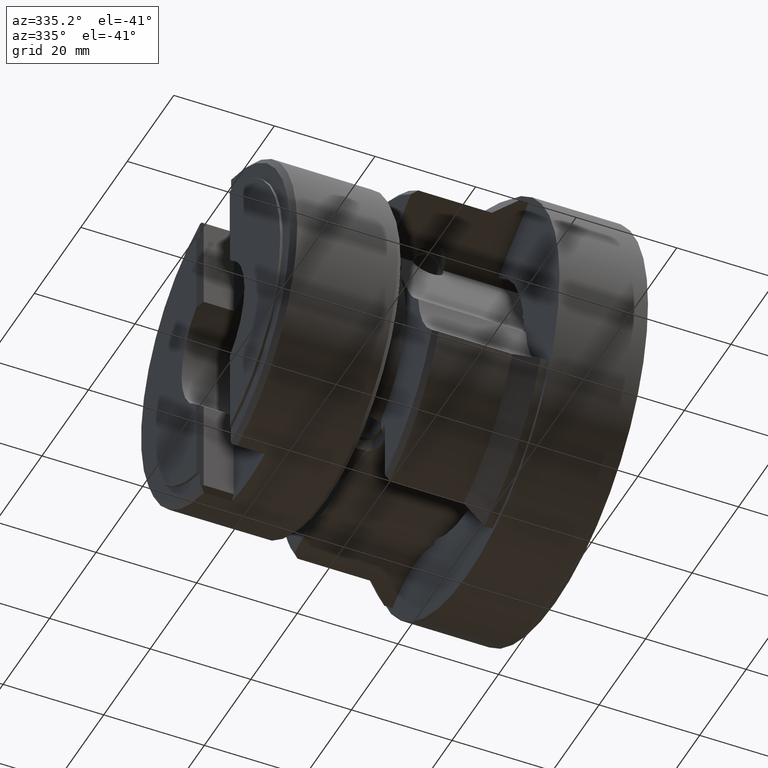
[diagram: clean part render]
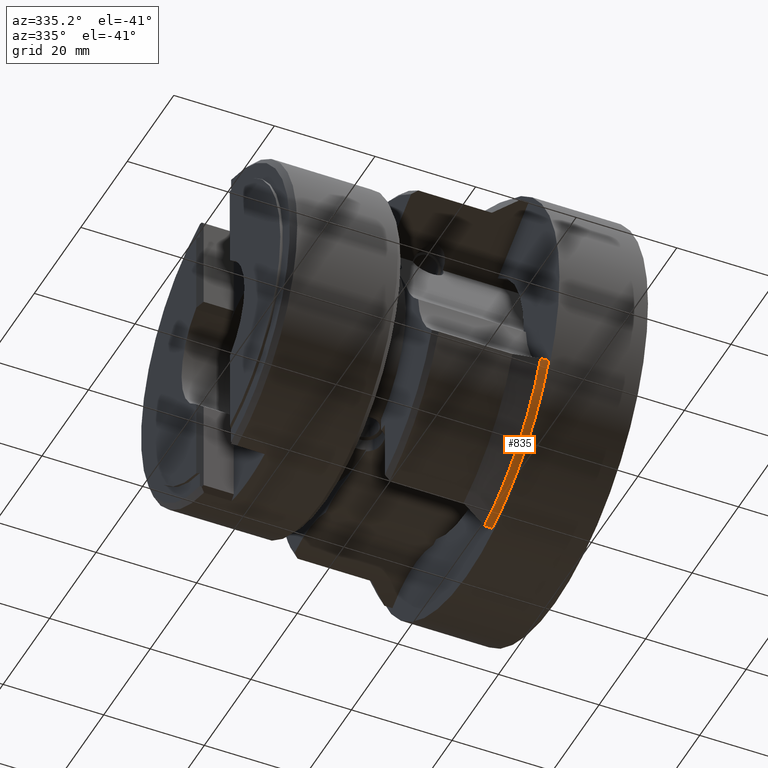
[diagram: same view with one face highlighted and labeled with its STEP entity id]
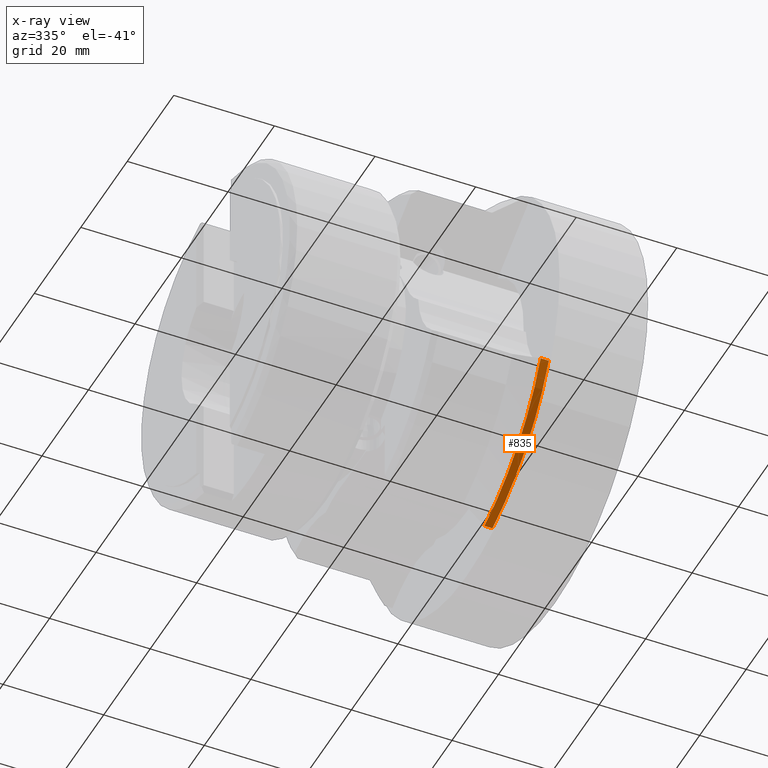
[diagram: x-ray of the same camera — body ghosted, the highlighted face saturated]
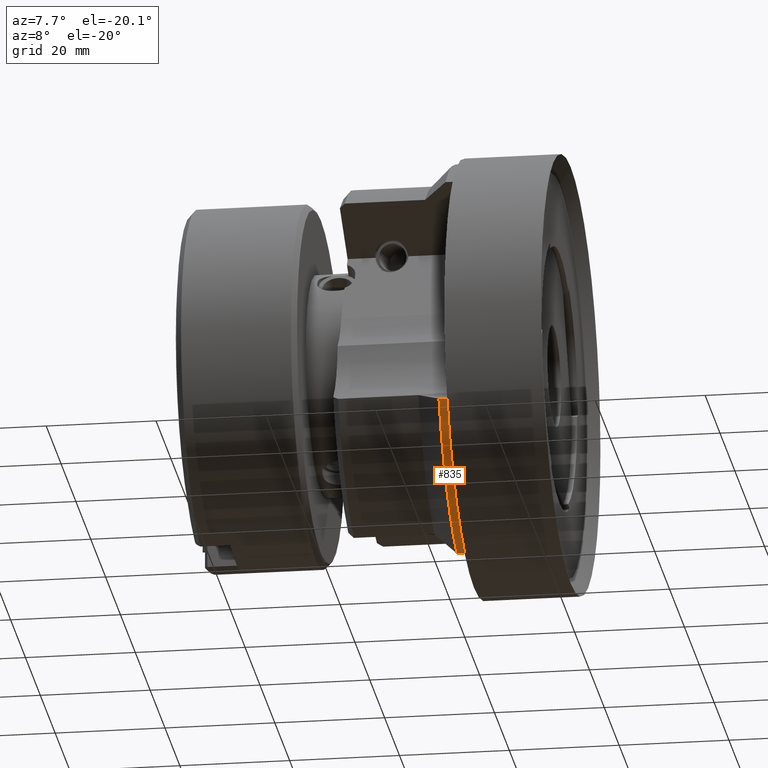
[diagram: same view with one face highlighted and labeled with its STEP entity id]
A machine part, auxiliary view. The second image highlights one B-rep face of the part: STEP entity #835.
The next image is the same camera in x-ray: the body ghosted, the highlighted face saturated — about 0% of this face is hidden behind the body in this view.
A second angle (auxiliary view) of the same face is appended — the face is thin or edge-on in the first view.
In plain terms, the highlighted cylindrical surface (partial cylindrical patch) has radius 39 mm, axis along (1, -0, -0).
Its self-contained STEP definition (entity closure, byte-faithful):
#53 = DIRECTION ( 'NONE',  ( -1.000000000000000000, 0.0000000000000000000, 0.0000000000000000000 ) ) ;
#59 = CARTESIAN_POINT ( 'NONE',  ( 13.51075761658968100, -11.17000000000000200, -37.36617588140375500 ) ) ;
#160 = CARTESIAN_POINT ( 'NONE',  ( -9.100000000000010300, -35.39123470481984400, -16.38476444958410700 ) ) ;
#164 = DIRECTION ( 'NONE',  ( 1.000000000000000000, -0.0000000000000000000, -0.0000000000000000000 ) ) ;
#448 = CARTESIAN_POINT ( 'NONE',  ( -17.19999999999999900, -11.17000000000000200, -37.36617588140375500 ) ) ;
#460 = ORIENTED_EDGE ( 'NONE', *, *, #3405, .F. ) ;
#604 = AXIS2_PLACEMENT_3D ( 'NONE', #4611, #4617, #4613 ) ;
#750 = VERTEX_POINT ( 'NONE', #4738 ) ;
#757 = VERTEX_POINT ( 'NONE', #4731 ) ;
#835 = ADVANCED_FACE ( 'NONE', ( #2334 ), #2340, .T. ) ;
#1173 = EDGE_LOOP ( 'NONE', ( #1342, #1341, #460, #3860 ) ) ;
#1341 = ORIENTED_EDGE ( 'NONE', *, *, #3177, .F. ) ;
#1342 = ORIENTED_EDGE ( 'NONE', *, *, #3254, .F. ) ;
#1637 = DIRECTION ( 'NONE',  ( 0.0000000000000000000, 0.0000000000000000000, 1.000000000000000000 ) ) ;
#1638 = DIRECTION ( 'NONE',  ( -1.000000000000000000, -0.0000000000000000000, -0.0000000000000000000 ) ) ;
#1639 = CARTESIAN_POINT ( 'NONE',  ( -17.19999999999999900, 0.0000000000000000000, 0.0000000000000000000 ) ) ;
#2334 = FACE_OUTER_BOUND ( 'NONE', #1173, .T. ) ;
#2340 = CYLINDRICAL_SURFACE ( 'NONE', #604, 39.00000000000000000 ) ;
#2464 = AXIS2_PLACEMENT_3D ( 'NONE', #1639, #1638, #1637 ) ;
#2485 = AXIS2_PLACEMENT_3D ( 'NONE', #5181, #5188, #5193 ) ;
#2681 = CIRCLE ( 'NONE', #2485, 39.00000000000000000 ) ;
#3068 = VERTEX_POINT ( 'NONE', #4881 ) ;
#3084 = VERTEX_POINT ( 'NONE', #448 ) ;
#3177 = EDGE_CURVE ( 'NONE', #757, #750, #4344, .T. ) ;
#3215 = EDGE_CURVE ( 'NONE', #3068, #3084, #4395, .T. ) ;
#3254 = EDGE_CURVE ( 'NONE', #750, #3068, #2681, .T. ) ;
#3405 = EDGE_CURVE ( 'NONE', #3084, #757, #3591, .T. ) ;
#3591 = CIRCLE ( 'NONE', #2464, 39.00000000000000000 ) ;
#3860 = ORIENTED_EDGE ( 'NONE', *, *, #3215, .F. ) ;
#4344 = LINE ( 'NONE', #160, #4347 ) ;
#4347 = VECTOR ( 'NONE', #164, 1000.000000000000000 ) ;
#4395 = LINE ( 'NONE', #59, #4399 ) ;
#4399 = VECTOR ( 'NONE', #53, 1000.000000000000000 ) ;
#4611 = CARTESIAN_POINT ( 'NONE',  ( 13.51075761658968100, 0.0000000000000000000, 0.0000000000000000000 ) ) ;
#4613 = DIRECTION ( 'NONE',  ( 0.0000000000000000000, 0.0000000000000000000, -1.000000000000000000 ) ) ;
#4617 = DIRECTION ( 'NONE',  ( 1.000000000000000000, -0.0000000000000000000, -0.0000000000000000000 ) ) ;
#4731 = CARTESIAN_POINT ( 'NONE',  ( -17.19999999999999900, -35.39123470481984400, -16.38476444958410700 ) ) ;
#4738 = CARTESIAN_POINT ( 'NONE',  ( -15.60000000000000000, -35.39123470481985100, -16.38476444958411100 ) ) ;
#4881 = CARTESIAN_POINT ( 'NONE',  ( -15.60000000000000000, -11.17000000000000200, -37.36617588140375500 ) ) ;
#5181 = CARTESIAN_POINT ( 'NONE',  ( -15.60000000000000000, 0.0000000000000000000, 0.0000000000000000000 ) ) ;
#5188 = DIRECTION ( 'NONE',  ( 1.000000000000000000, -0.0000000000000000000, -0.0000000000000000000 ) ) ;
#5193 = DIRECTION ( 'NONE',  ( 0.0000000000000000000, -1.776356839400250500E-015, 1.000000000000000000 ) ) ;